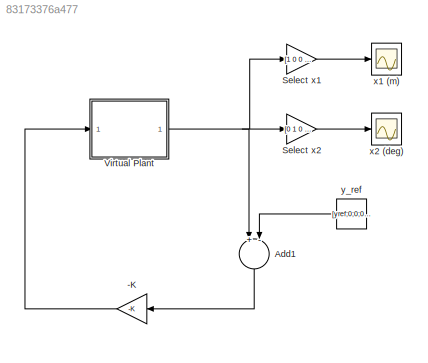
MODEL slx_83173376a477
KIND model
CONFIG AbsTol = auto
CONFIG EnableMultiTasking = off
CONFIG FixedStep = auto
CONFIG MaxStep = auto
CONFIG MinStep = auto
CONFIG RelTol = 1e-3
CONFIG SampleTimeConstraint = Unconstrained
CONFIG Solver = VariableStepAuto
CONFIG SolverName = VariableStepAuto
CONFIG StartTime = 0.0
CONFIG StopTime = 10
BLOCK [Gain] -K
  Gain = -K
  Multiplication = Matrix(K*u)
  OutDataTypeStr = Inherit: Inherit via internal rule
  ParamDataTypeStr = Inherit: Inherit via internal rule
  SaturateOnIntegerOverflow = off
BLOCK [Sum] Add1
  InputSameDT = off
  Inputs = +-
  OutDataTypeStr = Inherit: Inherit via internal rule
  Ports = [2, 1]
  SaturateOnIntegerOverflow = off
BLOCK [Gain] Select x1
  Gain = [1 0 0 0 0]
  Multiplication = Matrix(K*u)
  OutDataTypeStr = Inherit: Inherit via internal rule
  ParamDataTypeStr = Inherit: Inherit via internal rule
  SaturateOnIntegerOverflow = off
BLOCK [Gain] Select x2
  Gain = [0 1 0 0 0]*180/pi
  Multiplication = Matrix(K*u)
  OutDataTypeStr = Inherit: Inherit via internal rule
  ParamDataTypeStr = Inherit: Inherit via internal rule
  SaturateOnIntegerOverflow = off
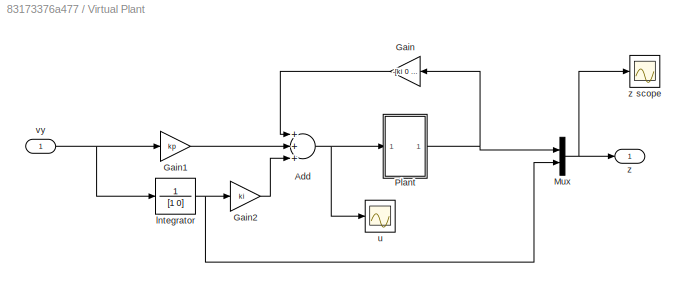
BLOCK [SubSystem] Virtual Plant
  Ports = [1, 1]
  RequestExecContextInheritance = off
  Variant = off
BLOCK [Sum] Virtual Plant/Add
  InputSameDT = off
  Inputs = +++
  OutDataTypeStr = Inherit: Inherit via internal rule
  Ports = [3, 1]
  SaturateOnIntegerOverflow = off
BLOCK [Gain] Virtual Plant/Gain
  Gain = -[ki 0 kp 0]
  Multiplication = Matrix(K*u)
  OutDataTypeStr = Inherit: Inherit via internal rule
  ParamDataTypeStr = Inherit: Inherit via internal rule
  SaturateOnIntegerOverflow = off
BLOCK [Gain] Virtual Plant/Gain1
  Gain = kp
  OutDataTypeStr = Inherit: Inherit via internal rule
  ParamDataTypeStr = Inherit: Inherit via internal rule
  SaturateOnIntegerOverflow = off
BLOCK [Gain] Virtual Plant/Gain2
  Gain = ki
  OutDataTypeStr = Inherit: Inherit via internal rule
  ParamDataTypeStr = Inherit: Inherit via internal rule
  SaturateOnIntegerOverflow = off
BLOCK [Mux] Virtual Plant/Mux
  DisplayOption = bar
  Inputs = 2
  Ports = [2, 1]
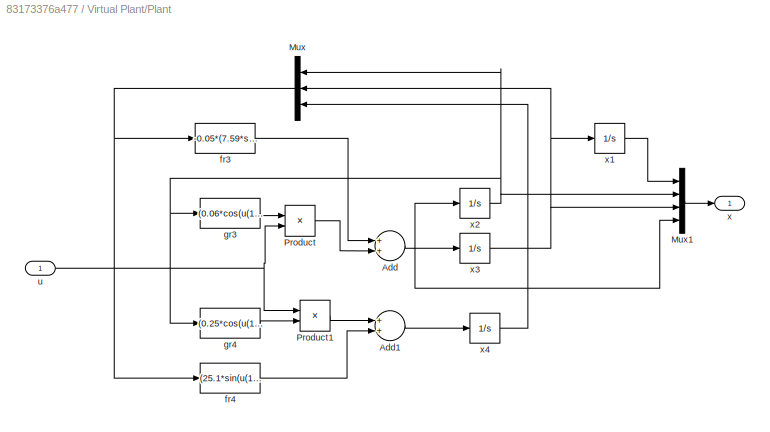
BLOCK [SubSystem] Virtual Plant/Plant
  Ports = [1, 1]
  RequestExecContextInheritance = off
  Variant = off
BLOCK [Sum] Virtual Plant/Plant/Add
  InputSameDT = off
  OutDataTypeStr = Inherit: Inherit via internal rule
  Ports = [2, 1]
  SaturateOnIntegerOverflow = off
BLOCK [Sum] Virtual Plant/Plant/Add1
  InputSameDT = off
  OutDataTypeStr = Inherit: Inherit via internal rule
  Ports = [2, 1]
  SaturateOnIntegerOverflow = off
BLOCK [Mux] Virtual Plant/Plant/Mux
  DisplayOption = bar
  Inputs = 3
  Ports = [3, 1]
BLOCK [Mux] Virtual Plant/Plant/Mux1
  DisplayOption = bar
  Ports = [4, 1]
BLOCK [Product] Virtual Plant/Plant/Product
  InputSameDT = off
  OutDataTypeStr = Inherit: Inherit via internal rule
  Ports = [2, 1]
  RndMeth = Floor
  SaturateOnIntegerOverflow = off
BLOCK [Product] Virtual Plant/Plant/Product1
  InputSameDT = off
  OutDataTypeStr = Inherit: Inherit via internal rule
  Ports = [2, 1]
  RndMeth = Floor
  SaturateOnIntegerOverflow = off
BLOCK [Fcn] Virtual Plant/Plant/fr3
  Expr = -0.05*(7.59*sin(u(1))-65.5*sin(2*u(1))+11.5*u(3)^2*sin(u(1))+0.45*by*u(2)-0.03*brx*u(3)+0.52*brx*u(3)*cos(u(1)))/(0.075*cos(u(1))-0.65*cos(u(1))^2+2.2)
BLOCK [Fcn] Virtual Plant/Plant/fr4
  Expr = (25.1*sin(u(1))+0.037*u(3)^2*sin(u(1))-0.32*u(3)^2*sin(2*u(1))-(0.1*brx*u(3)-0.0015*by*u(2)+0.025*by*u(2)*cos(u(1))))/(0.075*cos(u(1))-0.65*cos(u(1))^2+2.2)
BLOCK [Fcn] Virtual Plant/Plant/gr3
  Expr = (0.06*cos(u(1))+0.21)/(0.075*cos(u(1))-0.65*cos(u(1))^2+2.2)
BLOCK [Fcn] Virtual Plant/Plant/gr4
  Expr = (0.25*cos(u(1))+0.21)/(0.075*cos(u(1))-0.65*cos(u(1))^2+2.2)
BLOCK [Inport] Virtual Plant/Plant/u
  IconDisplay = Port number
BLOCK [Outport] Virtual Plant/Plant/x
  IconDisplay = Port number
BLOCK [Integrator] Virtual Plant/Plant/x1
  Ports = [1, 1]
BLOCK [Integrator] Virtual Plant/Plant/x2
  InitialCondition = x20
  Ports = [1, 1]
BLOCK [Integrator] Virtual Plant/Plant/x3
  Ports = [1, 1]
BLOCK [Integrator] Virtual Plant/Plant/x4
  Ports = [1, 1]
BLOCK [TransferFcn] Virtual Plant/lntegrator
  Denominator = [1 0]
  Numerator = 1
BLOCK [Scope] Virtual Plant/u
  NumInputPorts = 1
  Ports = [1]
  ScopeSpecificationString = Simulink.scopes.TimeScopeBlockCfg('CurrentConfiguration', extmgr.ConfigurationSet(extmgr.Configuration('Core','General UI',true),extmgr.Configuration('Core','Source UI',true),extmgr.Configuration('Sources','WiredSimulink',true,'DataLoggingVariableName','u','DataLogging',true,'DataLoggingSaveFormat','Array'),extmgr.Configuration('Visuals','Time Domain',true,'SerializedDisplays',{struct('MinYLimReal...<+1476ch>
BLOCK [Inport] Virtual Plant/vy
  IconDisplay = Port number
BLOCK [Outport] Virtual Plant/z
  IconDisplay = Port number
BLOCK [Scope] Virtual Plant/z scope
  NumInputPorts = 1
  Ports = [1]
  ScopeSpecificationString = Simulink.scopes.TimeScopeBlockCfg('CurrentConfiguration', extmgr.ConfigurationSet(extmgr.Configuration('Core','General UI',true),extmgr.Configuration('Core','Source UI',true),extmgr.Configuration('Sources','WiredSimulink',true,'DataLoggingVariableName','x','DataLogging',true,'DataLoggingSaveFormat','Array'),extmgr.Configuration('Visuals','Time Domain',true,'SerializedDisplays',{struct('MinYLimReal...<+1523ch>
BLOCK [Scope] x1 (m)
  NumInputPorts = 1
  Ports = [1]
  ScopeSpecificationString = Simulink.scopes.TimeScopeBlockCfg('CurrentConfiguration', extmgr.ConfigurationSet(extmgr.Configuration('Core','General UI',true),extmgr.Configuration('Core','Source UI',true),extmgr.Configuration('Sources','WiredSimulink',true,'DataLoggingVariableName','ScopeData2'),extmgr.Configuration('Visuals','Time Domain',true,'SerializedDisplays',{struct('MinYLimReal','-0.64947','MaxYLimReal','3.5928','YLabe...<+1482ch>
BLOCK [Scope] x2 (deg)
  NumInputPorts = 1
  Ports = [1]
  ScopeSpecificationString = Simulink.scopes.TimeScopeBlockCfg('CurrentConfiguration', extmgr.ConfigurationSet(extmgr.Configuration('Core','General UI',true),extmgr.Configuration('Core','Source UI',true),extmgr.Configuration('Sources','WiredSimulink',true),extmgr.Configuration('Visuals','Time Domain',true,'SerializedDisplays',{struct('MinYLimReal','-1.77675','MaxYLimReal','2.41964','YLabelReal','','MinYLimMag','0.00000','MaxY...<+1403ch>
BLOCK [Constant] y_ref
  Value = [yref;0;0;0;0]
LINE -K:1 -> Virtual Plant:1
LINE Add1:1 -> -K:1
LINE Select x1:1 -> x1 (m):1
LINE Select x2:1 -> x2 (deg):1
NET Virtual Plant/Add:1 -> Virtual Plant/Plant:1, Virtual Plant/u:1
LINE Virtual Plant/Gain1:1 -> Virtual Plant/Add:2
LINE Virtual Plant/Gain2:1 -> Virtual Plant/Add:3
LINE Virtual Plant/Gain:1 -> Virtual Plant/Add:1
NET Virtual Plant/Mux:1 -> Virtual Plant/z scope:1, Virtual Plant/z:1
LINE Virtual Plant/Plant/Add1:1 -> Virtual Plant/Plant/x4:1
LINE Virtual Plant/Plant/Add:1 -> Virtual Plant/Plant/x3:1
LINE Virtual Plant/Plant/Mux1:1 -> Virtual Plant/Plant/x:1
NET Virtual Plant/Plant/Mux:1 -> Virtual Plant/Plant/fr3:1, Virtual Plant/Plant/fr4:1
LINE Virtual Plant/Plant/Product1:1 -> Virtual Plant/Plant/Add1:1
LINE Virtual Plant/Plant/Product:1 -> Virtual Plant/Plant/Add:2
LINE Virtual Plant/Plant/fr3:1 -> Virtual Plant/Plant/Add:1
LINE Virtual Plant/Plant/fr4:1 -> Virtual Plant/Plant/Add1:2
LINE Virtual Plant/Plant/gr3:1 -> Virtual Plant/Plant/Product:1
LINE Virtual Plant/Plant/gr4:1 -> Virtual Plant/Plant/Product1:2
NET Virtual Plant/Plant/u:1 -> Virtual Plant/Plant/Product1:1, Virtual Plant/Plant/Product:2
LINE Virtual Plant/Plant/x1:1 -> Virtual Plant/Plant/Mux1:1
NET Virtual Plant/Plant/x2:1 -> Virtual Plant/Plant/Mux1:2, Virtual Plant/Plant/Mux:1, Virtual Plant/Plant/gr3:1, Virtual Plant/Plant/gr4:1
NET Virtual Plant/Plant/x3:1 -> Virtual Plant/Plant/Mux1:3, Virtual Plant/Plant/Mux:2, Virtual Plant/Plant/x1:1
NET Virtual Plant/Plant/x4:1 -> Virtual Plant/Plant/Mux1:4, Virtual Plant/Plant/Mux:3, Virtual Plant/Plant/x2:1
NET Virtual Plant/Plant:1 -> Virtual Plant/Gain:1, Virtual Plant/Mux:1
NET Virtual Plant/lntegrator:1 -> Virtual Plant/Gain2:1, Virtual Plant/Mux:2
NET Virtual Plant/vy:1 -> Virtual Plant/Gain1:1, Virtual Plant/lntegrator:1
NET Virtual Plant:1 -> Add1:1, Select x1:1, Select x2:1
LINE y_ref:1 -> Add1:2
note: NET lines group one-source signal fan-out (src -> all destinations, sorted); 1:1 wires keep LINE
